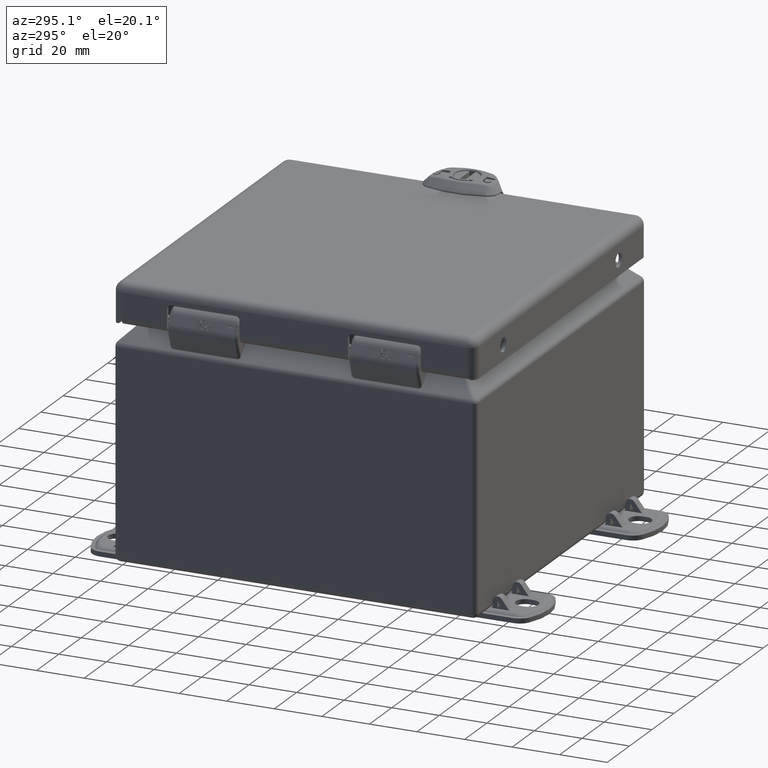
[diagram: clean part render]
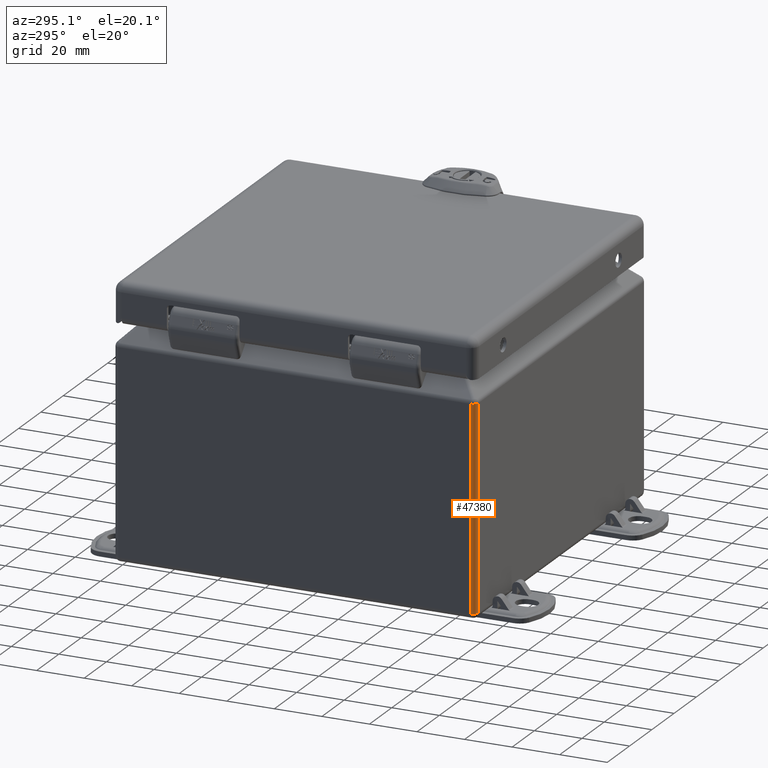
[diagram: same view with one face highlighted and labeled with its STEP entity id]
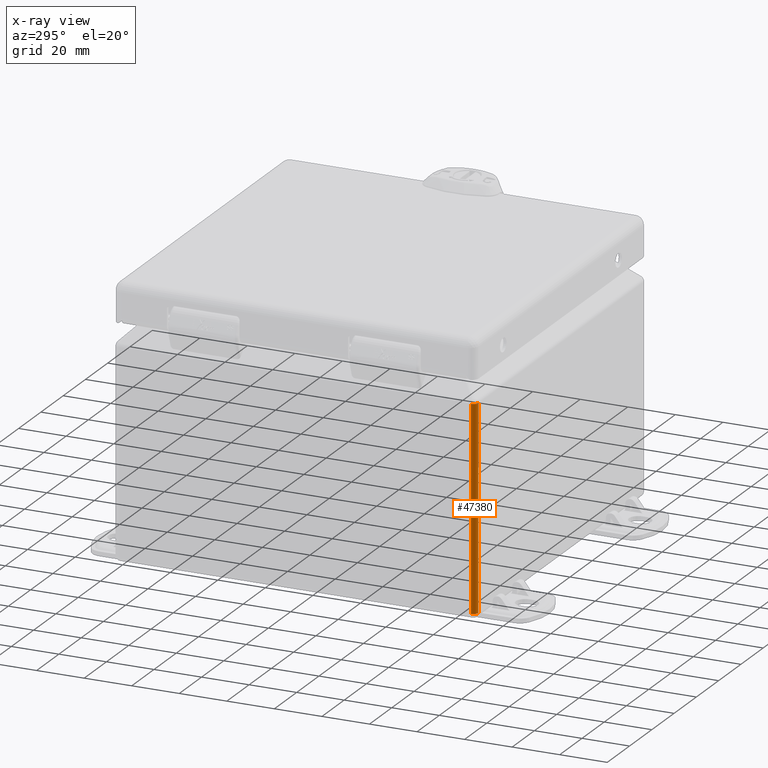
[diagram: x-ray of the same camera — body ghosted, the highlighted face saturated]
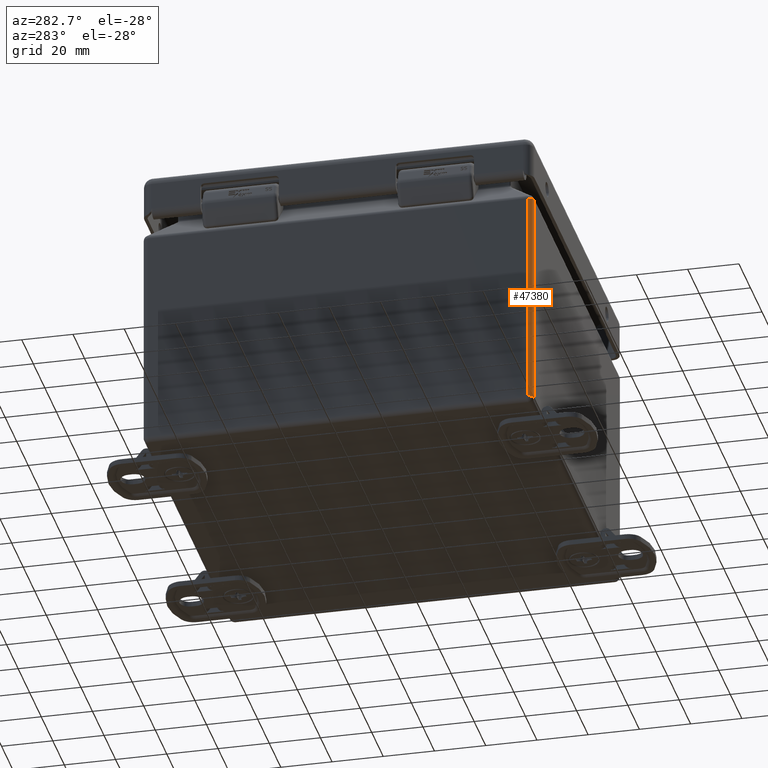
[diagram: same view with one face highlighted and labeled with its STEP entity id]
A machine part, auxiliary view. The second image highlights one B-rep face of the part: STEP entity #47380.
The next image is the same camera in x-ray: the body ghosted, the highlighted face saturated — about 0% of this face is hidden behind the body in this view.
A second angle (auxiliary view) of the same face is appended — the face is thin or edge-on in the first view.
In plain terms, the highlighted cylindrical surface (edge-blend (fillet) strip) has radius 2.1336 mm, axis along (0, 0, 1).
Its self-contained STEP definition (entity closure, byte-faithful):
#4211=FACE_OUTER_BOUND('',#7162,.T.);
#7162=EDGE_LOOP('',(#32534,#32535,#32536,#32537));
#10342=LINE('',#69441,#14370);
#10343=LINE('',#69444,#14371);
#14370=VECTOR('',#56025,0.393700787401575);
#14371=VECTOR('',#56028,0.393700787401575);
#18248=CIRCLE('',#51058,0.0839999999999999);
#18249=CIRCLE('',#51059,0.0839999999999999);
#20273=VERTEX_POINT('',#69437);
#20274=VERTEX_POINT('',#69438);
#20275=VERTEX_POINT('',#69440);
#20276=VERTEX_POINT('',#69442);
#24918=EDGE_CURVE('',#20273,#20274,#18248,.T.);
#24919=EDGE_CURVE('',#20274,#20275,#10342,.T.);
#24920=EDGE_CURVE('',#20275,#20276,#18249,.T.);
#24921=EDGE_CURVE('',#20276,#20273,#10343,.T.);
#32534=ORIENTED_EDGE('',*,*,#24918,.T.);
#32535=ORIENTED_EDGE('',*,*,#24919,.T.);
#32536=ORIENTED_EDGE('',*,*,#24920,.T.);
#32537=ORIENTED_EDGE('',*,*,#24921,.T.);
#46482=CYLINDRICAL_SURFACE('',#51057,0.084);
#47380=ADVANCED_FACE('',(#4211),#46482,.T.);
#51057=AXIS2_PLACEMENT_3D('',#69436,#56021,#56022);
#51058=AXIS2_PLACEMENT_3D('',#69439,#56023,#56024);
#51059=AXIS2_PLACEMENT_3D('',#69443,#56026,#56027);
#56021=DIRECTION('center_axis',(8.47539707789791E-17,9.47019476145151E-17,
1.));
#56022=DIRECTION('ref_axis',(-0.707106781186547,-0.707106781186547,0.));
#56023=DIRECTION('center_axis',(0.,1.30087999698299E-16,1.));
#56024=DIRECTION('ref_axis',(-1.,0.,0.));
#56025=DIRECTION('',(8.47539707789791E-17,9.47019476145151E-17,1.));
#56026=DIRECTION('center_axis',(1.64014950019615E-12,0.,-1.));
#56027=DIRECTION('ref_axis',(0.,-1.,0.));
#56028=DIRECTION('',(-8.47539707789791E-17,-9.47019476145151E-17,-1.));
#69436=CARTESIAN_POINT('Origin',(-2.916,-2.916,2.06459086935095));
#69437=CARTESIAN_POINT('',(-3.,-2.916,0.0839999999999999));
#69438=CARTESIAN_POINT('',(-2.916,-3.,0.0839999999999999));
#69439=CARTESIAN_POINT('Origin',(-2.916,-2.916,0.0839999999999999));
#69440=CARTESIAN_POINT('',(-2.916,-3.,3.43715505376066));
#69441=CARTESIAN_POINT('',(-2.916,-3.,2.06459086935095));
#69442=CARTESIAN_POINT('',(-3.,-2.916,3.43715505376052));
#69443=CARTESIAN_POINT('Origin',(-2.916,-2.916,3.43715505376066));
#69444=CARTESIAN_POINT('',(-3.,-2.916,2.06459086935095));